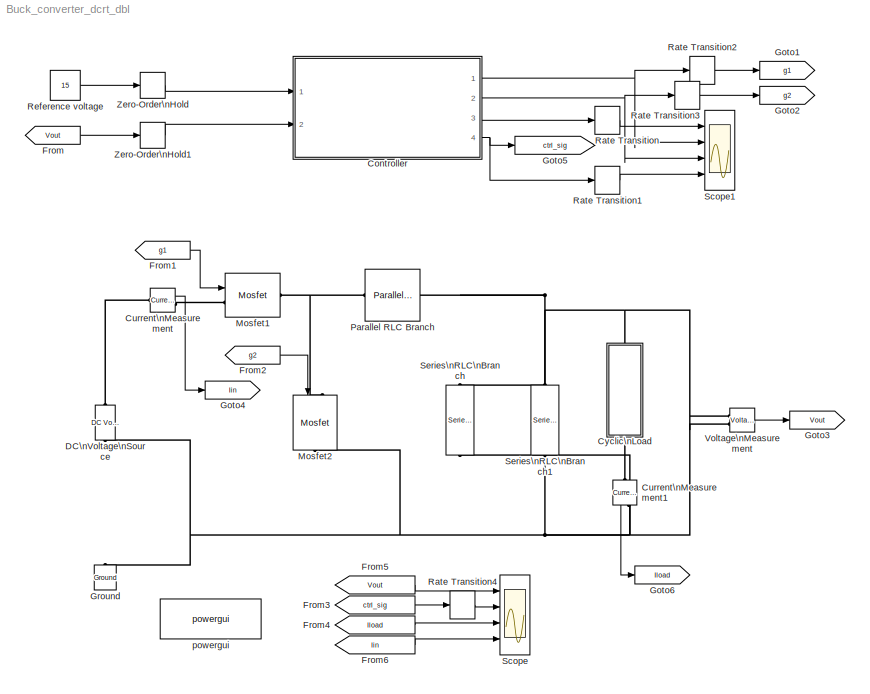
MODEL Buck_converter_dcrt_dbl
KIND model
CONFIG PreLoadFcn = Ts = 2e-6\nTsc = 1e-7\n
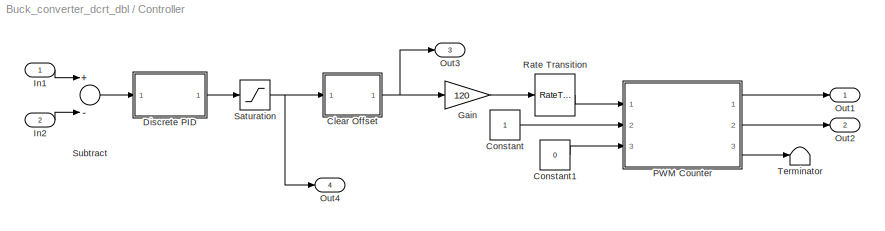
BLOCK [SubSystem] Controller
  Ports = [2, 4]
  RequestExecContextInheritance = off
  SID = 72
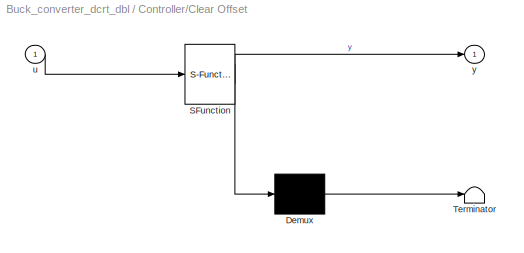
BLOCK [SubSystem] Controller/Clear Offset
  ErrorFcn = Stateflow.Translate.translate
  PermitHierarchicalResolution = ExplicitOnly
  Ports = [1, 1]
  RequestExecContextInheritance = off
  SFBlockType = MATLAB Function
  SID = 104
  TreatAsAtomicUnit = on
BLOCK [Demux] Controller/Clear Offset/ Demux 
  Outputs = 1
  Ports = [1, 1]
  SID = 104::28
BLOCK [S-Function] Controller/Clear Offset/ SFunction 
  EnableBusSupport = on
  FunctionName = sf_sfun
  PortCounts = [1 2]
  Ports = [1, 2]
  SID = 104::27
  Tag = Stateflow S-Function Buck_converter_dcrt_dbl 2
BLOCK [Terminator] Controller/Clear Offset/ Terminator 
  SID = 104::29
BLOCK [Inport] Controller/Clear Offset/u
  IconDisplay = Port number
  SID = 104::1
BLOCK [Outport] Controller/Clear Offset/y
  IconDisplay = Port number
  SID = 104::5
BLOCK [Constant] Controller/Constant
  SID = 99
  SampleTime = Tsc
BLOCK [Constant] Controller/Constant1
  SID = 100
  SampleTime = Tsc
  Value = 0
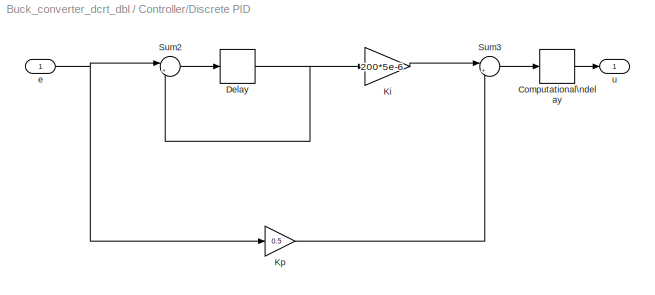
BLOCK [SubSystem] Controller/Discrete PID
  Ports = [1, 1]
  RequestExecContextInheritance = off
  SID = 55
BLOCK [Delay] Controller/Discrete PID/Computational\ndelay
  DelayLength = 1
  InputPortMap = u0
  InputProcessing = Inherited
  Ports = [1, 1]
  SID = 57
BLOCK [Delay] Controller/Discrete PID/Delay
  DelayLength = 1
  InputPortMap = u0
  InputProcessing = Inherited
  Ports = [1, 1]
  SID = 67
BLOCK [Gain] Controller/Discrete PID/Ki
  Gain = 200*5e-6
  OutDataTypeStr = Inherit: Inherit via internal rule
  ParamDataTypeStr = Inherit: Inherit via internal rule
  SID = 59
  SaturateOnIntegerOverflow = off
BLOCK [Gain] Controller/Discrete PID/Kp
  Gain = 0.5
  OutDataTypeStr = Inherit: Inherit via internal rule
  ParamDataTypeStr = Inherit: Inherit via internal rule
  SID = 60
  SaturateOnIntegerOverflow = off
BLOCK [Sum] Controller/Discrete PID/Sum2
  IconShape = round
  Inputs = |++
  Ports = [2, 1]
  SID = 62
BLOCK [Sum] Controller/Discrete PID/Sum3
  IconShape = round
  Inputs = |++
  Ports = [2, 1]
  SID = 69
BLOCK [Inport] Controller/Discrete PID/e
  IconDisplay = Port number
  SID = 56
BLOCK [Outport] Controller/Discrete PID/u
  IconDisplay = Port number
  SID = 64
BLOCK [Gain] Controller/Gain
  Gain = 120
  OutDataTypeStr = Inherit: Inherit via internal rule
  ParamDataTypeStr = Inherit: Inherit via internal rule
  SID = 92
  SaturateOnIntegerOverflow = off
BLOCK [Inport] Controller/In1
  IconDisplay = Port number
  SID = 73
BLOCK [Inport] Controller/In2
  IconDisplay = Port number
  Port = 2
  SID = 76
BLOCK [Outport] Controller/Out1
  IconDisplay = Port number
  SID = 74
BLOCK [Outport] Controller/Out2
  IconDisplay = Port number
  Port = 2
  SID = 75
BLOCK [Outport] Controller/Out3
  IconDisplay = Port number
  Port = 3
  SID = 77
BLOCK [Outport] Controller/Out4
  IconDisplay = Port number
  Port = 4
  SID = 78
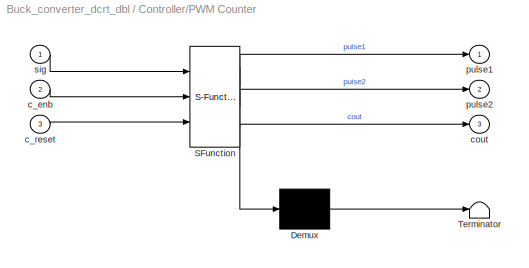
BLOCK [SubSystem] Controller/PWM Counter
  ErrorFcn = Stateflow.Translate.translate
  PermitHierarchicalResolution = ExplicitOnly
  Ports = [3, 3]
  RequestExecContextInheritance = off
  SFBlockType = MATLAB Function
  SID = 105
  TreatAsAtomicUnit = on
BLOCK [Demux] Controller/PWM Counter/ Demux 
  Outputs = 1
  Ports = [1, 1]
  SID = 105::32
BLOCK [S-Function] Controller/PWM Counter/ SFunction 
  EnableBusSupport = on
  FunctionName = sf_sfun
  PortCounts = [3 4]
  Ports = [3, 4]
  SID = 105::31
  Tag = Stateflow S-Function Buck_converter_dcrt_dbl 1
BLOCK [Terminator] Controller/PWM Counter/ Terminator 
  SID = 105::33
BLOCK [Inport] Controller/PWM Counter/c_enb
  IconDisplay = Port number
  Port = 2
  SID = 105::23
BLOCK [Inport] Controller/PWM Counter/c_reset
  IconDisplay = Port number
  Port = 3
  SID = 105::24
BLOCK [Outport] Controller/PWM Counter/cout
  IconDisplay = Port number
  Port = 3
  SID = 105::26
BLOCK [Outport] Controller/PWM Counter/pulse1
  IconDisplay = Port number
  SID = 105::5
BLOCK [Outport] Controller/PWM Counter/pulse2
  IconDisplay = Port number
  Port = 2
  SID = 105::25
BLOCK [Inport] Controller/PWM Counter/sig
  IconDisplay = Port number
  SID = 105::1
BLOCK [RateTransition] Controller/Rate Transition
  OutPortSampleTime = Tsc
  SID = 93
BLOCK [Saturate] Controller/Saturation
  InputPortMap = u0
  LowerLimit = 0.01
  Ports = [1, 1]
  SID = 22
  UpperLimit = 0.95
BLOCK [Sum] Controller/Subtract
  InputSameDT = off
  Inputs = +-
  OutDataTypeStr = Inherit: Inherit via internal rule
  Ports = [2, 1]
  SID = 21
  SaturateOnIntegerOverflow = off
BLOCK [Terminator] Controller/Terminator
  SID = 102
BLOCK [Reference] Current\nMeasurement  REF=powerlib/Measurements/Current Measurement
  OutputType = Complex
  PSBequivalent = 0
  PhasorSimulation = off
  Ports = [0, 1, 0, 0, 0, 1, 1]
  SID = 2
  SourceBlock = powerlib/Measurements/Current Measurement
  SourceType = Current Measurement
BLOCK [Reference] Current\nMeasurement1  REF=powerlib/Measurements/Current Measurement
  OutputType = Complex
  PSBequivalent = 0
  PhasorSimulation = off
  Ports = [0, 1, 0, 0, 0, 1, 1]
  SID = 34
  SourceBlock = powerlib/Measurements/Current Measurement
  SourceType = Current Measurement
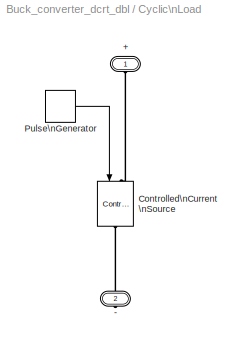
BLOCK [SubSystem] Cyclic\nLoad
  Ports = [0, 0, 0, 0, 0, 1, 1]
  RequestExecContextInheritance = off
  SID = 14
BLOCK [PMIOPort] Cyclic\nLoad/+
  Port = 1
  SID = 15
  Side = Left
BLOCK [PMIOPort] Cyclic\nLoad/-
  Port = 2
  SID = 16
  Side = Right
BLOCK [Reference] Cyclic\nLoad/Controlled\nCurrent\nSource  REF=powerlib/Electrical\nSources/Controlled Current Source
  Amplitude = 0
  Frequency = 0
  Initialize = on
  Measurements = None
  Phase = 0
  Ports = [1, 0, 0, 0, 0, 1, 1]
  SID = 10
  SourceBlock = powerlib/Electrical\nSources/Controlled Current Source
  SourceType = Controlled Current Source
  Source_Type = AC
BLOCK [DiscretePulseGenerator] Cyclic\nLoad/Pulse\nGenerator
  Amplitude = 2
  Period = 1/200
  PhaseDelay = 1/400
  Ports = [0, 1]
  PulseType = Time based
  PulseWidth = 50
  SID = 11
BLOCK [Reference] DC\nVoltage\nSource  REF=powerlib/Electrical\nSources/DC Voltage Source
  Amplitude = 30
  Measurements = None
  Ports = [0, 0, 0, 0, 0, 1, 1]
  SID = 1
  SourceBlock = powerlib/Electrical\nSources/DC Voltage Source
  SourceType = DC Voltage Source
BLOCK [From] From
  GotoTag = Vout
  SID = 20
BLOCK [From] From1
  GotoTag = g1
  SID = 36
BLOCK [From] From2
  GotoTag = g2
  SID = 37
BLOCK [From] From3
  GotoTag = ctrl_sig
  SID = 46
BLOCK [From] From4
  GotoTag = Iload
  SID = 47
BLOCK [From] From5
  GotoTag = Vout
  SID = 48
BLOCK [From] From6
  GotoTag = Iin
  SID = 51
BLOCK [Goto] Goto1
  GotoTag = g1
  SID = 27
BLOCK [Goto] Goto2
  GotoTag = g2
  SID = 28
BLOCK [Goto] Goto3
  GotoTag = Vout
  SID = 35
BLOCK [Goto] Goto4
  GotoTag = Iin
  SID = 38
BLOCK [Goto] Goto5
  GotoTag = ctrl_sig
  SID = 43
BLOCK [Goto] Goto6
  GotoTag = Iload
  SID = 45
BLOCK [Reference] Ground  REF=powerlib/Elements/Ground
  LConnTagsString = a
  Ports = [0, 0, 0, 0, 0, 1]
  SID = 12
  SourceBlock = powerlib/Elements/Ground
  SourceType = Ground
BLOCK [Reference] Mosfet1  REF=powerlib/Power\nElectronics/Mosfet
  Cs = inf
  IC = 0
  Lon = 0
  Measurements = off
  Ports = [1, 0, 0, 0, 0, 1, 1]
  Rd = 0.01
  Ron = 0.1
  Rs = 1e5
  SID = 3
  SourceBlock = powerlib/Power\nElectronics/Mosfet
  SourceType = Mosfet
  Vfd = 0.8
BLOCK [Reference] Mosfet2  REF=powerlib/Power\nElectronics/Mosfet
  Cs = inf
  IC = 0
  Lon = 0
  Measurements = off
  Ports = [1, 0, 0, 0, 0, 1, 1]
  Rd = 0.01
  Ron = 0.1
  Rs = 1e5
  SID = 4
  SourceBlock = powerlib/Power\nElectronics/Mosfet
  SourceType = Mosfet
  Vfd = 0.8
BLOCK [Reference] Parallel RLC Branch  REF=powerlib/Elements/Parallel RLC Branch
  AttributesFormatString = \\n
  BranchType = RL
  Capacitance = 1e-6
  Inductance = 1e-3
  InitialCurrent = 0
  InitialVoltage = 0
  LConnTagsString = a
  Measurements = None
  Ports = [0, 0, 0, 0, 0, 1, 1]
  RConnTagsString = __new0
  Resistance = 10e3
  SID = 6
  SetiL0 = off
  Setx0 = off
  SourceBlock = powerlib/Elements/Parallel RLC Branch
  SourceType = Parallel RLC Branch
BLOCK [RateTransition] Rate Transition
  SID = 106
BLOCK [RateTransition] Rate Transition1
  SID = 107
BLOCK [RateTransition] Rate Transition2
  SID = 108
BLOCK [RateTransition] Rate Transition3
  SID = 109
BLOCK [RateTransition] Rate Transition4
  SID = 110
BLOCK [Constant] Reference voltage
  SID = 19
  Value = 15
BLOCK [Scope] Scope
  DataFormat = StructureWithTime
  Floating = off
  LimitDataPoints = off
  NumInputPorts = 4
  Ports = [4]
  SID = 49
  SampleTime = 0
  ShowLegends = off
  TimeRange = 0.01
  YMax = 25~1~3~8
  YMin = 0~0~-1~-1
  ZoomMode = yonly
BLOCK [Scope] Scope1
  DataFormat = StructureWithTime
  Floating = off
  LimitDataPoints = off
  NumInputPorts = 4
  Ports = [4]
  SID = 52
  SampleTime = 0
  SaveName = ScopeData1
  ShowLegends = off
  TimeRange = 0.001041229385307346
  YMax = 1~1~1~1
  YMin = -1~0~0~-1
  ZoomMode = xonly
BLOCK [Reference] Series\nRLC\nBranch  REF=powerlib/Elements/Series RLC Branch
  BranchType = C
  Capacitance = 22e-6
  Inductance = 1e-3
  InitialCurrent = 0
  InitialVoltage = 0
  LConnTagsString = __new0
  Measurements = None
  Ports = [0, 0, 0, 0, 0, 1, 1]
  RConnTagsString = __new0
  Resistance = 1
  SID = 8
  SetiL0 = off
  Setx0 = off
  SourceBlock = powerlib/Elements/Series RLC Branch
  SourceType = Series RLC Branch
BLOCK [Reference] Series\nRLC\nBranch1  REF=powerlib/Elements/Series RLC Branch
  BranchType = R
  Capacitance = 22e-6
  Inductance = 1e-3
  InitialCurrent = 0
  InitialVoltage = 0
  LConnTagsString = __new0
  Measurements = None
  Ports = [0, 0, 0, 0, 0, 1, 1]
  RConnTagsString = __new0
  Resistance = 3.75
  SID = 9
  SetiL0 = off
  Setx0 = off
  SourceBlock = powerlib/Elements/Series RLC Branch
  SourceType = Series RLC Branch
BLOCK [Reference] Voltage\nMeasurement  REF=powerlib/Measurements/Voltage Measurement
  OutputType = Complex
  PSBequivalent = 0
  PhasorSimulation = off
  Ports = [0, 1, 0, 0, 0, 2]
  SID = 13
  SourceBlock = powerlib/Measurements/Voltage Measurement
  SourceType = Voltage Measurement
BLOCK [ZeroOrderHold] Zero-Order\nHold
  SID = 53
  SampleTime = Ts
BLOCK [ZeroOrderHold] Zero-Order\nHold1
  SID = 54
  SampleTime = Ts
BLOCK [Reference] powergui  REF=powerlib/powergui
  DisableRonSwitches = off
  DisableSnubberDevices = off
  DisableVfSwitches = off
  DisplayEquations = off
  DisplayStyle = 1
  EnableUseOfTLC = off
  ErrMax = 1e-4
  Frange = [0:2:500]
  FreqAxis = off
  FunctionMessages = off
  HookPort = off
  Interpol = off
  Iterations = 50
  MaxFrequency = 1000
  Pbase = 100e6
  Ports = []
  Priority = 1
  ResistiveCurrentMeasurement = off
  RestoreLinks = warning
  RmsSteady = 1
  SID = 50
  SPID = off
  SampleTime = 50e-6
  ShowGrid = off
  SolverType = Tustin
  SourceBlock = powerlib/powergui
  SourceType = PSB option menu block
  StartTime = 0.0
  SwTol = 0
  Ts = 100
  UnitsV = kV
  UnitsW = MW
  UserDataPersistent = on
  Xlog = on
  Ylog = off
  ZoomFFT = off
  cycles = 1
  display = off
  echomessages = off
  frequency = 60
  frequencyindice = 0
  frequencyindicesteady = 1
  fundamental = 60
  methode = off
  save = off
  structure = 0
  variable = ZData
  x0status = blocks
LINE Controller/Clear Offset/ Demux :1 -> Controller/Clear Offset/ Terminator :1
LINE Controller/Clear Offset/ SFunction :1 -> Controller/Clear Offset/ Demux :1
LINE Controller/Clear Offset/ SFunction :2 -> Controller/Clear Offset/y:1
LINE Controller/Clear Offset/u:1 -> Controller/Clear Offset/ SFunction :1
NET Controller/Clear Offset:1 -> Controller/Gain:1, Controller/Out3:1
LINE Controller/Constant1:1 -> Controller/PWM Counter:3
LINE Controller/Constant:1 -> Controller/PWM Counter:2
LINE Controller/Discrete PID/Computational\ndelay:1 -> Controller/Discrete PID/u:1
NET Controller/Discrete PID/Delay:1 -> Controller/Discrete PID/Ki:1, Controller/Discrete PID/Sum2:2
LINE Controller/Discrete PID/Ki:1 -> Controller/Discrete PID/Sum3:1
LINE Controller/Discrete PID/Kp:1 -> Controller/Discrete PID/Sum3:2
LINE Controller/Discrete PID/Sum2:1 -> Controller/Discrete PID/Delay:1
LINE Controller/Discrete PID/Sum3:1 -> Controller/Discrete PID/Computational\ndelay:1
NET Controller/Discrete PID/e:1 -> Controller/Discrete PID/Kp:1, Controller/Discrete PID/Sum2:1
LINE Controller/Discrete PID:1 -> Controller/Saturation:1
LINE Controller/Gain:1 -> Controller/Rate Transition:1
LINE Controller/In1:1 -> Controller/Subtract:1
LINE Controller/In2:1 -> Controller/Subtract:2
LINE Controller/PWM Counter/ Demux :1 -> Controller/PWM Counter/ Terminator :1
LINE Controller/PWM Counter/ SFunction :1 -> Controller/PWM Counter/ Demux :1
LINE Controller/PWM Counter/ SFunction :2 -> Controller/PWM Counter/pulse1:1
LINE Controller/PWM Counter/ SFunction :3 -> Controller/PWM Counter/pulse2:1
LINE Controller/PWM Counter/ SFunction :4 -> Controller/PWM Counter/cout:1
LINE Controller/PWM Counter/c_enb:1 -> Controller/PWM Counter/ SFunction :2
LINE Controller/PWM Counter/c_reset:1 -> Controller/PWM Counter/ SFunction :3
LINE Controller/PWM Counter/sig:1 -> Controller/PWM Counter/ SFunction :1
LINE Controller/PWM Counter:1 -> Controller/Out1:1
LINE Controller/PWM Counter:2 -> Controller/Out2:1
LINE Controller/PWM Counter:3 -> Controller/Terminator:1
LINE Controller/Rate Transition:1 -> Controller/PWM Counter:1
NET Controller/Saturation:1 -> Controller/Clear Offset:1, Controller/Out4:1
LINE Controller/Subtract:1 -> Controller/Discrete PID:1
NET Controller:1 -> Rate Transition2:1, Scope1:2
NET Controller:2 -> Rate Transition3:1, Scope1:3
LINE Controller:3 -> Rate Transition:1
NET Controller:4 -> Goto5:1, Rate Transition1:1
LINE Current\nMeasurement1:1 -> Goto6:1
LINE Current\nMeasurement:1 -> Goto4:1
LINE Cyclic\nLoad/Pulse\nGenerator:1 -> Cyclic\nLoad/Controlled\nCurrent\nSource:1
LINE From1:1 -> Mosfet1:1
LINE From2:1 -> Mosfet2:1
LINE From3:1 -> Rate Transition4:1
LINE From4:1 -> Scope:3
LINE From5:1 -> Scope:1
LINE From6:1 -> Scope:4
LINE From:1 -> Zero-Order\nHold1:1
LINE Rate Transition1:1 -> Scope1:4
LINE Rate Transition2:1 -> Goto1:1
LINE Rate Transition3:1 -> Goto2:1
LINE Rate Transition4:1 -> Scope:2
LINE Rate Transition:1 -> Scope1:1
LINE Reference voltage:1 -> Zero-Order\nHold:1
LINE Voltage\nMeasurement:1 -> Goto3:1
LINE Zero-Order\nHold1:1 -> Controller:2
LINE Zero-Order\nHold:1 -> Controller:1
PLINE Current\nMeasurement1:LConn1 -- Cyclic\nLoad:RConn1
PNET net1: Current\nMeasurement1:RConn1 -- DC\nVoltage\nSource:LConn1 -- Ground:LConn1 -- Mosfet2:RConn1 -- Series\nRLC\nBranch1:RConn1 -- Series\nRLC\nBranch:RConn1 -- Voltage\nMeasurement:LConn2
PLINE Current\nMeasurement:LConn1 -- DC\nVoltage\nSource:RConn1
PLINE Current\nMeasurement:RConn1 -- Mosfet1:LConn1
PLINE Cyclic\nLoad/+:RConn1 -- Cyclic\nLoad/Controlled\nCurrent\nSource:LConn1
PLINE Cyclic\nLoad/-:RConn1 -- Cyclic\nLoad/Controlled\nCurrent\nSource:RConn1
PNET net2: Cyclic\nLoad:LConn1 -- Parallel RLC Branch:RConn1 -- Series\nRLC\nBranch1:LConn1 -- Series\nRLC\nBranch:LConn1 -- Voltage\nMeasurement:LConn1
PNET net3: Mosfet1:RConn1 -- Mosfet2:LConn1 -- Parallel RLC Branch:LConn1
note: NET lines group one-source signal fan-out (src -> all destinations, sorted); 1:1 wires keep LINE; PNET lines group multi-terminal physical nets as a canonical sorted terminal list (undirected conserving connections); 2-terminal nets keep the pairwise PLINE form
CHART Controller/PWM Counter states=1 transitions=1
  STATE_LABEL 'eML_blk_kernel()'
CHART Controller/Clear Offset states=1 transitions=1
  STATE_LABEL 'eML_blk_kernel()'
